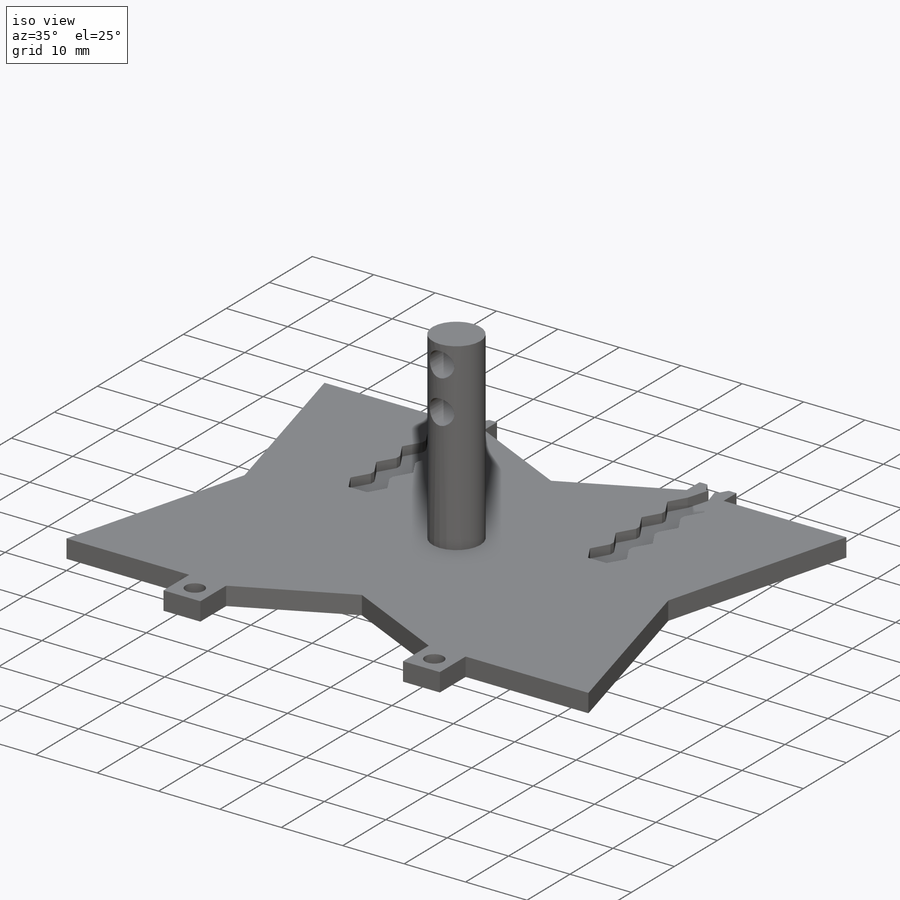
[diagram: iso view]
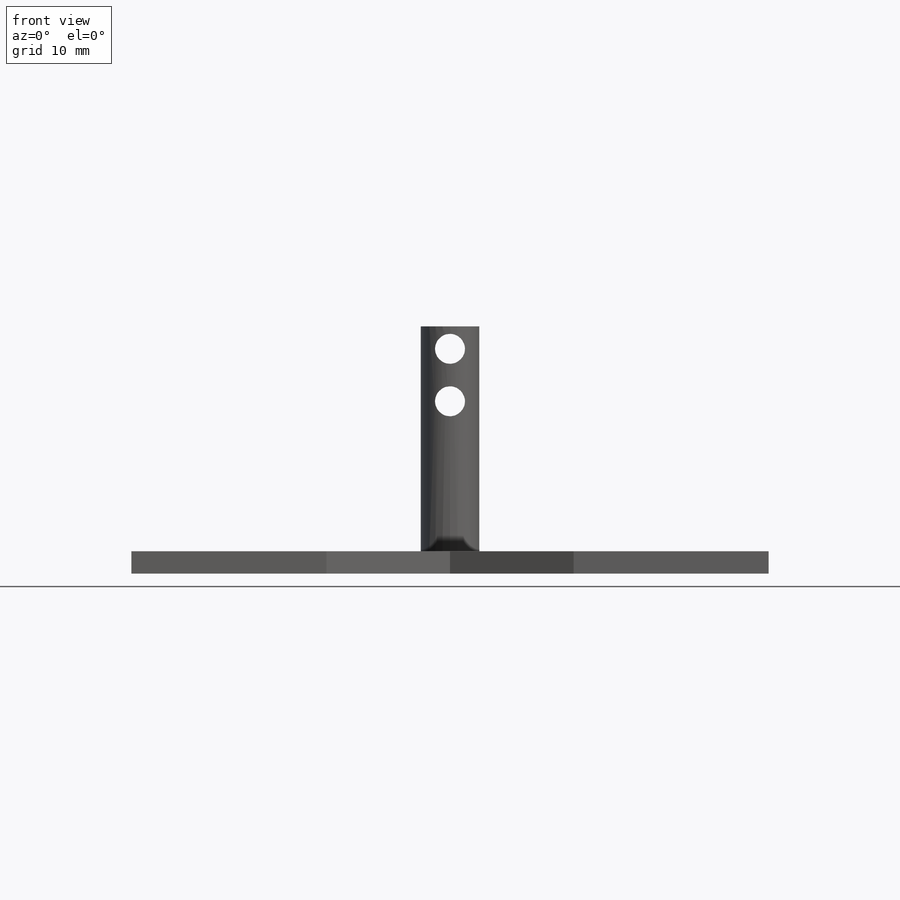
[diagram: front view]
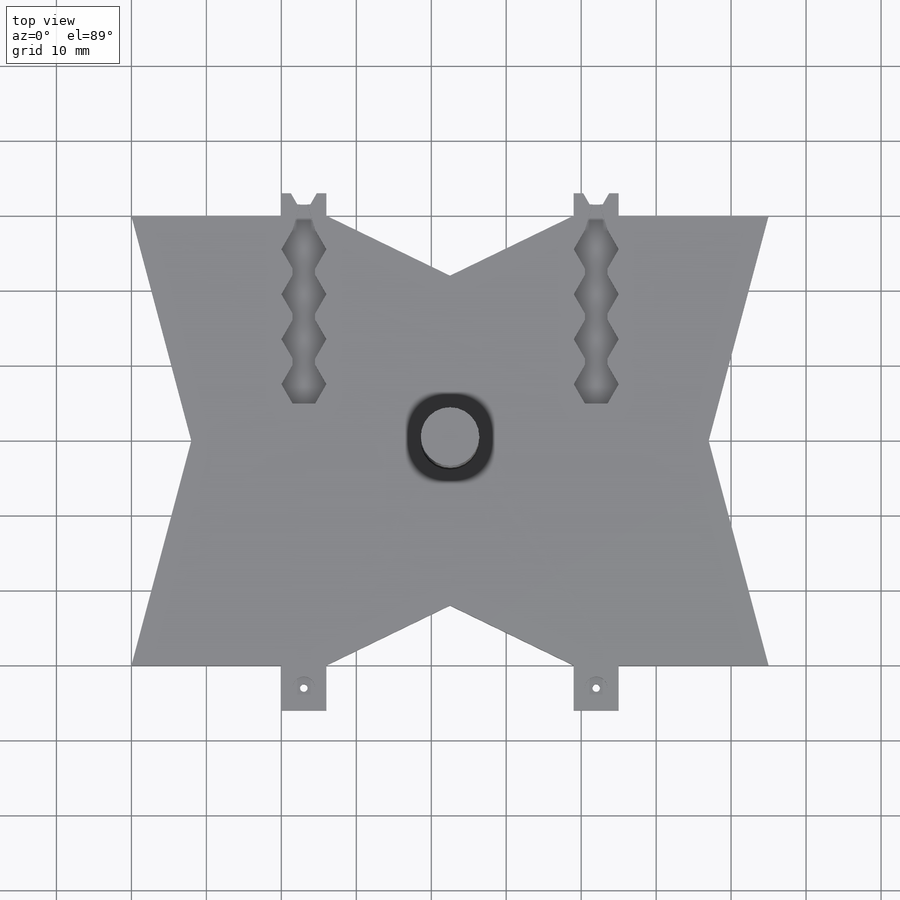
[diagram: top view]
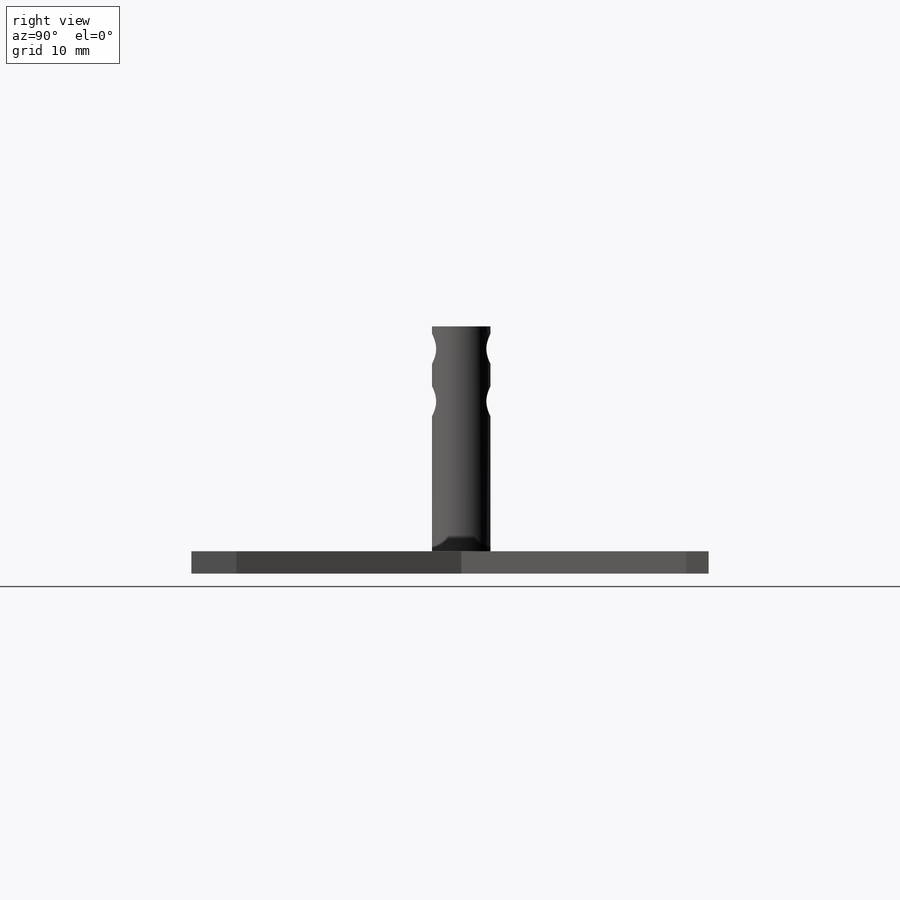
[diagram: right view]
SOLIDWORKS PART (.sldprt)
format: sldprt  version: not decoded by parser v0  size: 345,088 bytes
history: native  units: mm
features: sketch x5, plane x3, cut_extrude x3, extrude x2, material x1 (+9 scaffold rows collapsed)
feature tree (23):
  scaffold x9  (default folders/planes/origin — collapsed)
  material  "Material <sin especificar>"
  plane  "Alzado"
  plane  "Planta"
  plane  "Vista lateral"
  sketch  "Croquis1"  dims[c1.D6=3.0mm c1.D7=1.0mm c1.D1=60.0mm c1.D2=30.0mm c1.D3=45.0mm c1.D4=6.0mm c1.D5=3.0mm c1.D8=20.0mm c1.D9=10.0mm c2.D8=8.0mm c2.D10=8.0mm c2.D11=2.0mm]
  extrude  "Saliente-Extruir1"  Depth=3mm
  sketch  "Croquis2"  dims[D1=7.8mm]
  extrude  "Saliente-Extruir2"  Depth=30mm
  sketch  "Croquis3"  dims[D1=4.0mm D2=7.0mm D3=30.0mm]
  cut_extrude  "Cortar-Extruir1"  [1 undecoded]
  sketch  "Croquis4"  dims[D1=3.0mm]
  cut_extrude  "Cortar-Extruir2"  Depth=1.5mm
  sketch  "Croquis5"  dims[D1=3.0mm D2=6.0mm D3=1.0mm]
  cut_extrude  "Cortar-Extruir3"  Depth=1.5mm
decode coverage: 9 of 10 modeling features carry decoded parameters
note: 1 parameter value undecoded
note: suppression state not decoded; provenance and decode notes live in map.json
